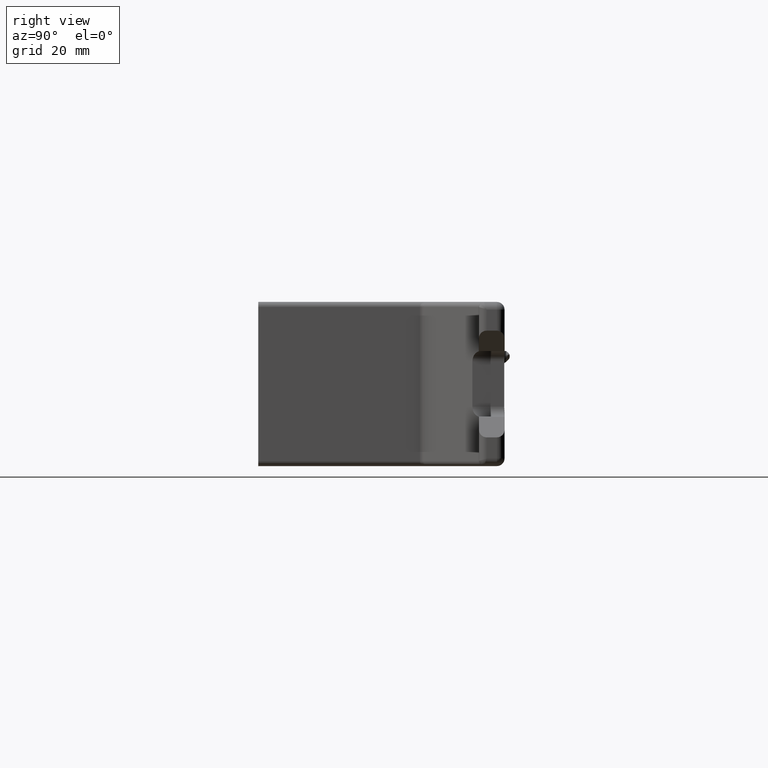
[diagram: clean part render]
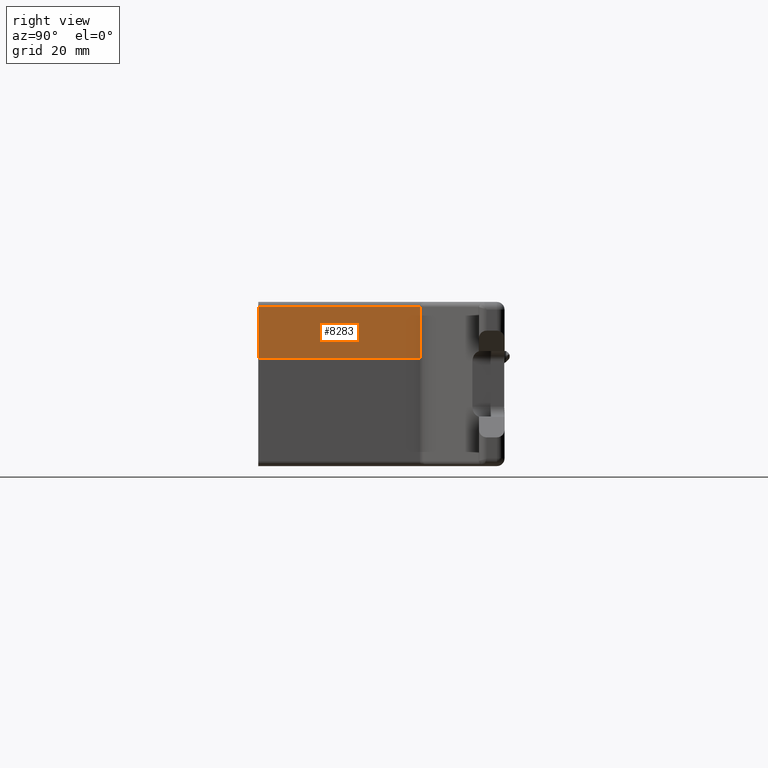
[diagram: same view with one face highlighted and labeled with its STEP entity id]
A machine part, right view. The second image highlights one B-rep face of the part: STEP entity #8283.
In plain terms, the highlighted planar face has unit normal (-1, 0, 0).
Its self-contained STEP definition (entity closure, byte-faithful):
#23 = DIRECTION ( 'NONE',  ( -1.000000000000000000, 0.0000000000000000000, 0.0000000000000000000 ) ) ;
#420 = EDGE_LOOP ( 'NONE', ( #7602, #6203, #7488, #1116 ) ) ;
#734 = VECTOR ( 'NONE', #4553, 39.37007874015748100 ) ;
#1116 = ORIENTED_EDGE ( 'NONE', *, *, #9594, .T. ) ;
#1162 = CARTESIAN_POINT ( 'NONE',  ( 2.919999999999999900, 1.072790596053081100E-015, 0.9375000000000000000 ) ) ;
#1324 = CARTESIAN_POINT ( 'NONE',  ( 2.919999999999999900, 1.072790596053081100E-015, 0.3125000000000000000 ) ) ;
#1414 = CARTESIAN_POINT ( 'NONE',  ( 2.919999999999999900, 1.072790596053081100E-015, 1.000000000000000000 ) ) ;
#2780 = CARTESIAN_POINT ( 'NONE',  ( 2.919999999999999900, 1.968886880875977900, 0.3125000000000000000 ) ) ;
#3617 = LINE ( 'NONE', #1414, #9305 ) ;
#3830 = CARTESIAN_POINT ( 'NONE',  ( 2.919999999999999900, 1.072790596053081100E-015, 0.9375000000000000000 ) ) ;
#3922 = PLANE ( 'NONE',  #4898 ) ;
#4275 = DIRECTION ( 'NONE',  ( -0.0000000000000000000, -1.000000000000000000, -0.0000000000000000000 ) ) ;
#4390 = CARTESIAN_POINT ( 'NONE',  ( 2.919999999999999900, 1.072790596053081100E-015, 0.3125000000000000000 ) ) ;
#4553 = DIRECTION ( 'NONE',  ( -0.0000000000000000000, -0.0000000000000000000, 1.000000000000000000 ) ) ;
#4898 = AXIS2_PLACEMENT_3D ( 'NONE', #9337, #23, #5470 ) ;
#4957 = FACE_OUTER_BOUND ( 'NONE', #420, .T. ) ;
#5252 = VERTEX_POINT ( 'NONE', #2780 ) ;
#5470 = DIRECTION ( 'NONE',  ( 0.0000000000000000000, 0.0000000000000000000, 1.000000000000000000 ) ) ;
#5527 = VERTEX_POINT ( 'NONE', #5943 ) ;
#5562 = VERTEX_POINT ( 'NONE', #1324 ) ;
#5943 = CARTESIAN_POINT ( 'NONE',  ( 2.919999999999999900, 1.968886880875977900, 0.9375000000000000000 ) ) ;
#6085 = VECTOR ( 'NONE', #4275, 39.37007874015748100 ) ;
#6203 = ORIENTED_EDGE ( 'NONE', *, *, #9264, .T. ) ;
#7250 = VERTEX_POINT ( 'NONE', #3830 ) ;
#7488 = ORIENTED_EDGE ( 'NONE', *, *, #9968, .T. ) ;
#7602 = ORIENTED_EDGE ( 'NONE', *, *, #8952, .T. ) ;
#8283 = ADVANCED_FACE ( 'NONE', ( #4957 ), #3922, .F. ) ;
#8515 = LINE ( 'NONE', #9183, #734 ) ;
#8873 = LINE ( 'NONE', #1162, #6085 ) ;
#8952 = EDGE_CURVE ( 'NONE', #7250, #5562, #3617, .T. ) ;
#9013 = DIRECTION ( 'NONE',  ( 0.0000000000000000000, 1.000000000000000000, 0.0000000000000000000 ) ) ;
#9103 = DIRECTION ( 'NONE',  ( -0.0000000000000000000, -0.0000000000000000000, -1.000000000000000000 ) ) ;
#9183 = CARTESIAN_POINT ( 'NONE',  ( 2.919999999999999900, 1.968886880875977900, 0.9374999999999998900 ) ) ;
#9186 = LINE ( 'NONE', #4390, #9666 ) ;
#9264 = EDGE_CURVE ( 'NONE', #5562, #5252, #9186, .T. ) ;
#9305 = VECTOR ( 'NONE', #9103, 39.37007874015748100 ) ;
#9337 = CARTESIAN_POINT ( 'NONE',  ( 2.919999999999999900, 1.072790596053081100E-015, 1.000000000000000000 ) ) ;
#9594 = EDGE_CURVE ( 'NONE', #5527, #7250, #8873, .T. ) ;
#9666 = VECTOR ( 'NONE', #9013, 39.37007874015748100 ) ;
#9968 = EDGE_CURVE ( 'NONE', #5252, #5527, #8515, .T. ) ;